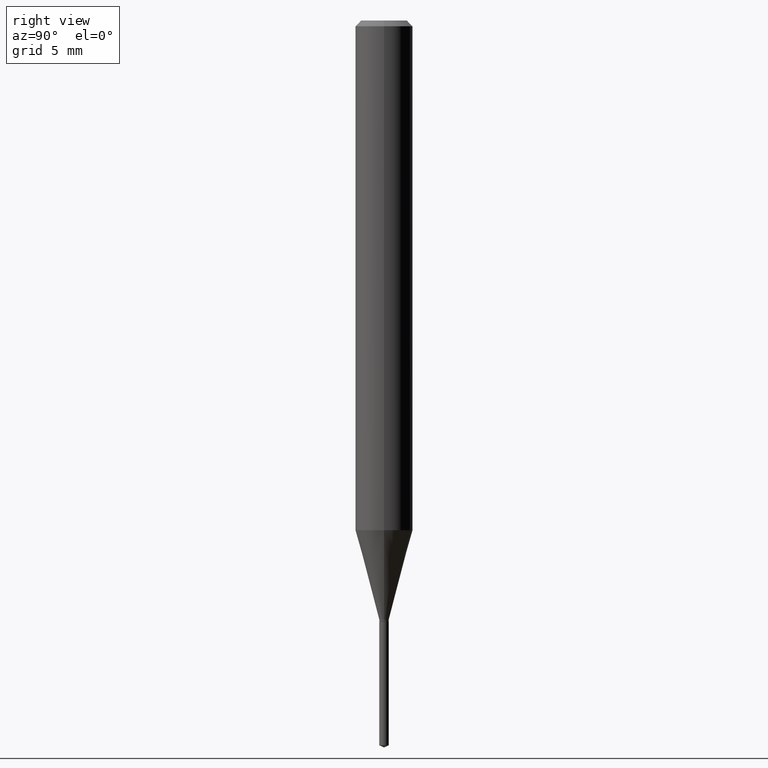
[diagram: clean part render]
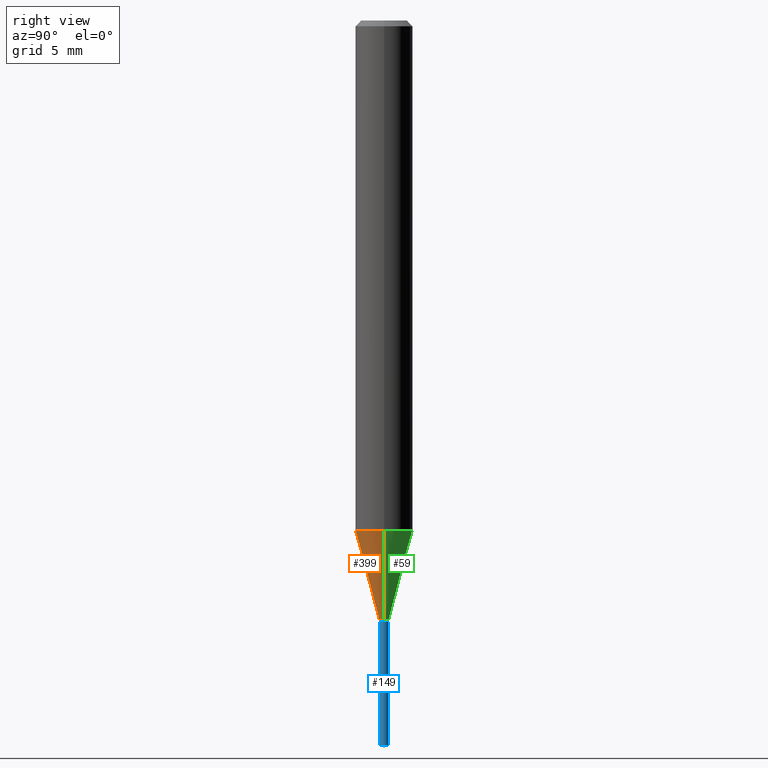
[diagram: same view with three faces highlighted in distinct colors, each labeled with its STEP entity id]
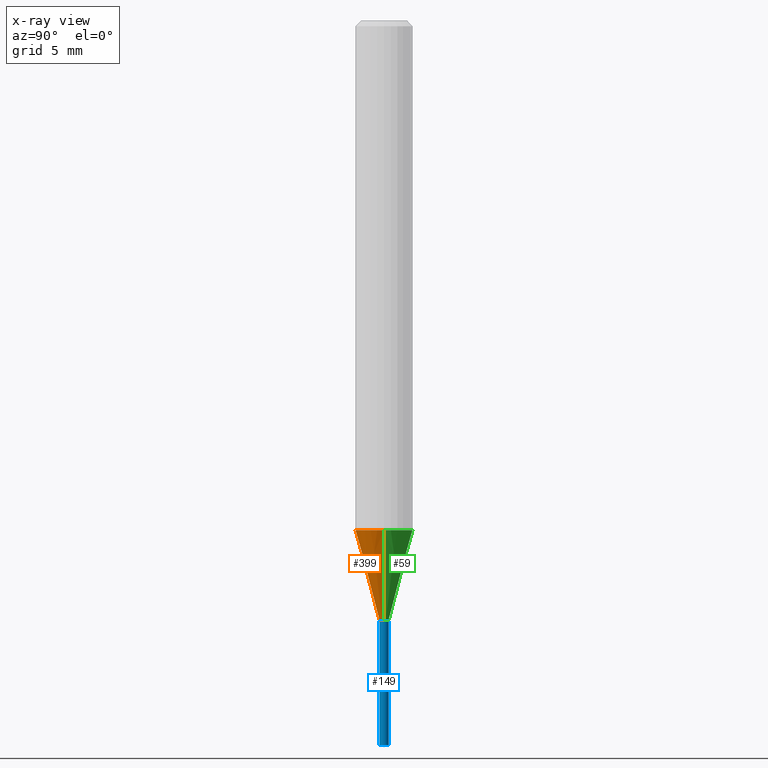
[diagram: x-ray of the same camera — body ghosted, the three highlighted faces saturated]
A machine part, right view with three faces highlighted in distinct colors.
The next image is the same camera in x-ray (body ghosted, the three faces saturated) — at least one of them is partly hidden behind the body in this view.
Their STEP definitions:

[orange] entity #399 — the highlighted conical surface has half-angle 15 deg.
#22 = LINE ( 'NONE', #48, #232 ) ;
#25 = DIRECTION ( 'NONE',  ( 1.000000000000000000, -6.982962677686265133E-15, 0.000000000000000000 ) ) ;
#26 = EDGE_CURVE ( 'NONE', #109, #225, #207, .T. ) ;
#41 = ORIENTED_EDGE ( 'NONE', *, *, #252, .T. ) ;
#48 = CARTESIAN_POINT ( 'NONE',  ( -0.009650000000000000591, -4.237825709328286181E-15, -1.233400000000000052 ) ) ;
#49 = EDGE_CURVE ( 'NONE', #264, #109, #22, .T. ) ;
#82 = DIRECTION ( 'NONE',  ( -2.445468806185136597E-29, 3.491481338843145583E-15, 1.000000000000000000 ) ) ;
#94 = AXIS2_PLACEMENT_3D ( 'NONE', #330, #217, #256 ) ;
#96 = EDGE_CURVE ( 'NONE', #190, #225, #241, .T. ) ;
#107 = AXIS2_PLACEMENT_3D ( 'NONE', #481, #391, #25 ) ;
#109 = VERTEX_POINT ( 'NONE', #294 ) ;
#154 = CARTESIAN_POINT ( 'NONE',  ( 0.05905000000000013016, -4.075035973384593498E-15, -1.049036690106097236 ) ) ;
#157 = CIRCLE ( 'NONE', #94, 0.009650000000000000591 ) ;
#175 = DIRECTION ( 'NONE',  ( -0.2588190451025211281, 5.211531920934547886E-15, 0.9659258262890679791 ) ) ;
#190 = VERTEX_POINT ( 'NONE', #254 ) ;
#207 = CIRCLE ( 'NONE', #107, 0.05905000000000013016 ) ;
#217 = DIRECTION ( 'NONE',  ( -2.445468806185136597E-29, 3.491481338843145583E-15, 1.000000000000000000 ) ) ;
#225 = VERTEX_POINT ( 'NONE', #154 ) ;
#232 = VECTOR ( 'NONE', #175, 39.37007874015748854 ) ;
#241 = LINE ( 'NONE', #324, #343 ) ;
#252 = EDGE_CURVE ( 'NONE', #264, #190, #157, .T. ) ;
#254 = CARTESIAN_POINT ( 'NONE',  ( 0.009650000000000000591, -4.373778673168807802E-15, -1.233400000000000052 ) ) ;
#256 = DIRECTION ( 'NONE',  ( 1.000000000000000000, -6.982962677686237523E-15, 0.000000000000000000 ) ) ;
#264 = VERTEX_POINT ( 'NONE', #332 ) ;
#267 = FACE_OUTER_BOUND ( 'NONE', #336, .T. ) ;
#274 = DIRECTION ( 'NONE',  ( 1.000000000000000000, -6.982962677686237523E-15, 0.000000000000000000 ) ) ;
#294 = CARTESIAN_POINT ( 'NONE',  ( -0.05905000000000013016, -3.243116541800878691E-15, -1.049036690106097236 ) ) ;
#324 = CARTESIAN_POINT ( 'NONE',  ( 0.009650000000000000591, -4.373778673168807802E-15, -1.233400000000000052 ) ) ;
#330 = CARTESIAN_POINT ( 'NONE',  ( 3.016241225548747360E-29, -4.306393083329135397E-15, -1.233400000000000052 ) ) ;
#332 = CARTESIAN_POINT ( 'NONE',  ( -0.009650000000000000591, -4.242015486934897790E-15, -1.233400000000000052 ) ) ;
#336 = EDGE_LOOP ( 'NONE', ( #408, #41, #416, #352 ) ) ;
#343 = VECTOR ( 'NONE', #478, 39.37007874015748854 ) ;
#348 = CARTESIAN_POINT ( 'NONE',  ( 3.016241225548747360E-29, -4.306393083329135397E-15, -1.233400000000000052 ) ) ;
#352 = ORIENTED_EDGE ( 'NONE', *, *, #26, .F. ) ;
#385 = CONICAL_SURFACE ( 'NONE', #393, 0.009650000000000000591, 0.2617993877991498519 ) ;
#391 = DIRECTION ( 'NONE',  ( -2.445468806185136597E-29, 3.491481338843145583E-15, 1.000000000000000000 ) ) ;
#393 = AXIS2_PLACEMENT_3D ( 'NONE', #348, #82, #274 ) ;
#399 = ADVANCED_FACE ( 'NONE', ( #267 ), #385, .T. ) ;
#408 = ORIENTED_EDGE ( 'NONE', *, *, #49, .F. ) ;
#416 = ORIENTED_EDGE ( 'NONE', *, *, #96, .T. ) ;
#478 = DIRECTION ( 'NONE',  ( 0.2588190451025211281, 1.565188264969622954E-15, 0.9659258262890679791 ) ) ;
#481 = CARTESIAN_POINT ( 'NONE',  ( 2.565386502198165089E-29, -3.662692027267218578E-15, -1.049036690106097236 ) ) ;

[blue] entity #149 — the highlighted cylindrical surface (edge-blend (fillet) strip) has radius 0.2451 mm, axis along (-0, 0, 1).
#1 = VERTEX_POINT ( 'NONE', #292 ) ;
#23 = FACE_OUTER_BOUND ( 'NONE', #81, .T. ) ;
#37 = ORIENTED_EDGE ( 'NONE', *, *, #276, .T. ) ;
#38 = DIRECTION ( 'NONE',  ( -6.982962677686265133E-15, -1.000000000000000000, 0.000000000000000000 ) ) ;
#61 = CIRCLE ( 'NONE', #480, 0.009650000000000000591 ) ;
#70 = DIRECTION ( 'NONE',  ( -2.442788307079794989E-29, 3.495319966126529436E-15, 1.000000000000000000 ) ) ;
#71 = DIRECTION ( 'NONE',  ( -2.442788307079794708E-29, 3.495319966126529831E-15, 1.000000000000000000 ) ) ;
#74 = VERTEX_POINT ( 'NONE', #213 ) ;
#81 = EDGE_LOOP ( 'NONE', ( #142, #37, #118, #307 ) ) ;
#87 = DIRECTION ( 'NONE',  ( -6.982962677686265133E-15, -1.000000000000000000, 0.000000000000000000 ) ) ;
#101 = CIRCLE ( 'NONE', #334, 0.009650000000000000591 ) ;
#110 = DIRECTION ( 'NONE',  ( -2.442788307079794989E-29, 3.495319966126529436E-15, 1.000000000000000000 ) ) ;
#117 = CARTESIAN_POINT ( 'NONE',  ( 3.646977260130782939E-29, -5.208874024796151872E-15, -1.491600131098804516 ) ) ;
#118 = ORIENTED_EDGE ( 'NONE', *, *, #261, .F. ) ;
#142 = ORIENTED_EDGE ( 'NONE', *, *, #313, .T. ) ;
#144 = LINE ( 'NONE', #223, #289 ) ;
#149 = ADVANCED_FACE ( 'NONE', ( #23 ), #177, .T. ) ;
#158 = CARTESIAN_POINT ( 'NONE',  ( 6.856737400088618161E-17, 0.009649999999995684599, -1.236299999999999955 ) ) ;
#160 = CARTESIAN_POINT ( 'NONE',  ( -6.738558983963601813E-17, -0.009650000000005213435, -1.491600131098804516 ) ) ;
#177 = CYLINDRICAL_SURFACE ( 'NONE', #314, 0.009650000000000000591 ) ;
#213 = CARTESIAN_POINT ( 'NONE',  ( 6.856737400088615695E-17, 0.009649999999994794686, -1.491600131098804516 ) ) ;
#223 = CARTESIAN_POINT ( 'NONE',  ( -6.738558983964223041E-17, -0.009650000000004314848, -1.236299999999999955 ) ) ;
#261 = EDGE_CURVE ( 'NONE', #1, #377, #101, .T. ) ;
#268 = EDGE_CURVE ( 'NONE', #421, #1, #144, .T. ) ;
#276 = EDGE_CURVE ( 'NONE', #74, #377, #298, .T. ) ;
#289 = VECTOR ( 'NONE', #375, 39.37007874015748143 ) ;
#292 = CARTESIAN_POINT ( 'NONE',  ( -6.738558983964223041E-17, -0.009650000000004314848, -1.236299999999999955 ) ) ;
#298 = LINE ( 'NONE', #414, #326 ) ;
#307 = ORIENTED_EDGE ( 'NONE', *, *, #268, .F. ) ;
#313 = EDGE_CURVE ( 'NONE', #421, #74, #61, .T. ) ;
#314 = AXIS2_PLACEMENT_3D ( 'NONE', #451, #110, #38 ) ;
#316 = DIRECTION ( 'NONE',  ( -2.442788307079794989E-29, 3.495319966126529436E-15, 1.000000000000000000 ) ) ;
#326 = VECTOR ( 'NONE', #71, 39.37007874015748143 ) ;
#334 = AXIS2_PLACEMENT_3D ( 'NONE', #450, #70, #366 ) ;
#366 = DIRECTION ( 'NONE',  ( -6.982962677686265133E-15, -1.000000000000000000, 0.000000000000000000 ) ) ;
#375 = DIRECTION ( 'NONE',  ( -2.442788307079794708E-29, 3.495319966126529831E-15, 1.000000000000000000 ) ) ;
#377 = VERTEX_POINT ( 'NONE', #158 ) ;
#414 = CARTESIAN_POINT ( 'NONE',  ( 6.856737400087989537E-17, 0.009649999999995684599, -1.236299999999999955 ) ) ;
#421 = VERTEX_POINT ( 'NONE', #160 ) ;
#450 = CARTESIAN_POINT ( 'NONE',  ( 3.023333085086683703E-29, -4.316518379211780118E-15, -1.236299999999999955 ) ) ;
#451 = CARTESIAN_POINT ( 'NONE',  ( 3.023333085086683703E-29, -4.316518379211780118E-15, -1.236299999999999955 ) ) ;
#480 = AXIS2_PLACEMENT_3D ( 'NONE', #117, #316, #87 ) ;

[green] entity #59 — the highlighted conical surface has half-angle 15 deg.
#14 = DIRECTION ( 'NONE',  ( 1.000000000000000000, -6.982962677686237523E-15, 0.000000000000000000 ) ) ;
#18 = AXIS2_PLACEMENT_3D ( 'NONE', #322, #443, #178 ) ;
#22 = LINE ( 'NONE', #48, #232 ) ;
#33 = AXIS2_PLACEMENT_3D ( 'NONE', #51, #249, #199 ) ;
#48 = CARTESIAN_POINT ( 'NONE',  ( -0.009650000000000000591, -4.237825709328286181E-15, -1.233400000000000052 ) ) ;
#49 = EDGE_CURVE ( 'NONE', #264, #109, #22, .T. ) ;
#51 = CARTESIAN_POINT ( 'NONE',  ( 2.565386502198165089E-29, -3.662692027267218578E-15, -1.049036690106097236 ) ) ;
#59 = ADVANCED_FACE ( 'NONE', ( #65 ), #263, .T. ) ;
#64 = EDGE_CURVE ( 'NONE', #225, #109, #384, .T. ) ;
#65 = FACE_OUTER_BOUND ( 'NONE', #406, .T. ) ;
#67 = CIRCLE ( 'NONE', #425, 0.009650000000000000591 ) ;
#72 = EDGE_CURVE ( 'NONE', #190, #264, #67, .T. ) ;
#96 = EDGE_CURVE ( 'NONE', #190, #225, #241, .T. ) ;
#109 = VERTEX_POINT ( 'NONE', #294 ) ;
#154 = CARTESIAN_POINT ( 'NONE',  ( 0.05905000000000013016, -4.075035973384593498E-15, -1.049036690106097236 ) ) ;
#175 = DIRECTION ( 'NONE',  ( -0.2588190451025211281, 5.211531920934547886E-15, 0.9659258262890679791 ) ) ;
#178 = DIRECTION ( 'NONE',  ( 1.000000000000000000, -6.982962677686237523E-15, 0.000000000000000000 ) ) ;
#190 = VERTEX_POINT ( 'NONE', #254 ) ;
#199 = DIRECTION ( 'NONE',  ( 1.000000000000000000, -6.982962677686265133E-15, 0.000000000000000000 ) ) ;
#201 = DIRECTION ( 'NONE',  ( -2.445468806185136597E-29, 3.491481338843145583E-15, 1.000000000000000000 ) ) ;
#225 = VERTEX_POINT ( 'NONE', #154 ) ;
#232 = VECTOR ( 'NONE', #175, 39.37007874015748854 ) ;
#241 = LINE ( 'NONE', #324, #343 ) ;
#249 = DIRECTION ( 'NONE',  ( -2.445468806185136597E-29, 3.491481338843145583E-15, 1.000000000000000000 ) ) ;
#254 = CARTESIAN_POINT ( 'NONE',  ( 0.009650000000000000591, -4.373778673168807802E-15, -1.233400000000000052 ) ) ;
#263 = CONICAL_SURFACE ( 'NONE', #18, 0.009650000000000000591, 0.2617993877991498519 ) ;
#264 = VERTEX_POINT ( 'NONE', #332 ) ;
#266 = ORIENTED_EDGE ( 'NONE', *, *, #96, .F. ) ;
#294 = CARTESIAN_POINT ( 'NONE',  ( -0.05905000000000013016, -3.243116541800878691E-15, -1.049036690106097236 ) ) ;
#322 = CARTESIAN_POINT ( 'NONE',  ( 3.016241225548747360E-29, -4.306393083329135397E-15, -1.233400000000000052 ) ) ;
#324 = CARTESIAN_POINT ( 'NONE',  ( 0.009650000000000000591, -4.373778673168807802E-15, -1.233400000000000052 ) ) ;
#328 = CARTESIAN_POINT ( 'NONE',  ( 3.016241225548747360E-29, -4.306393083329135397E-15, -1.233400000000000052 ) ) ;
#332 = CARTESIAN_POINT ( 'NONE',  ( -0.009650000000000000591, -4.242015486934897790E-15, -1.233400000000000052 ) ) ;
#343 = VECTOR ( 'NONE', #478, 39.37007874015748854 ) ;
#367 = ORIENTED_EDGE ( 'NONE', *, *, #49, .T. ) ;
#384 = CIRCLE ( 'NONE', #33, 0.05905000000000013016 ) ;
#406 = EDGE_LOOP ( 'NONE', ( #423, #367, #448, #266 ) ) ;
#423 = ORIENTED_EDGE ( 'NONE', *, *, #72, .T. ) ;
#425 = AXIS2_PLACEMENT_3D ( 'NONE', #328, #201, #14 ) ;
#443 = DIRECTION ( 'NONE',  ( -2.445468806185136597E-29, 3.491481338843145583E-15, 1.000000000000000000 ) ) ;
#448 = ORIENTED_EDGE ( 'NONE', *, *, #64, .F. ) ;
#478 = DIRECTION ( 'NONE',  ( 0.2588190451025211281, 1.565188264969622954E-15, 0.9659258262890679791 ) ) ;